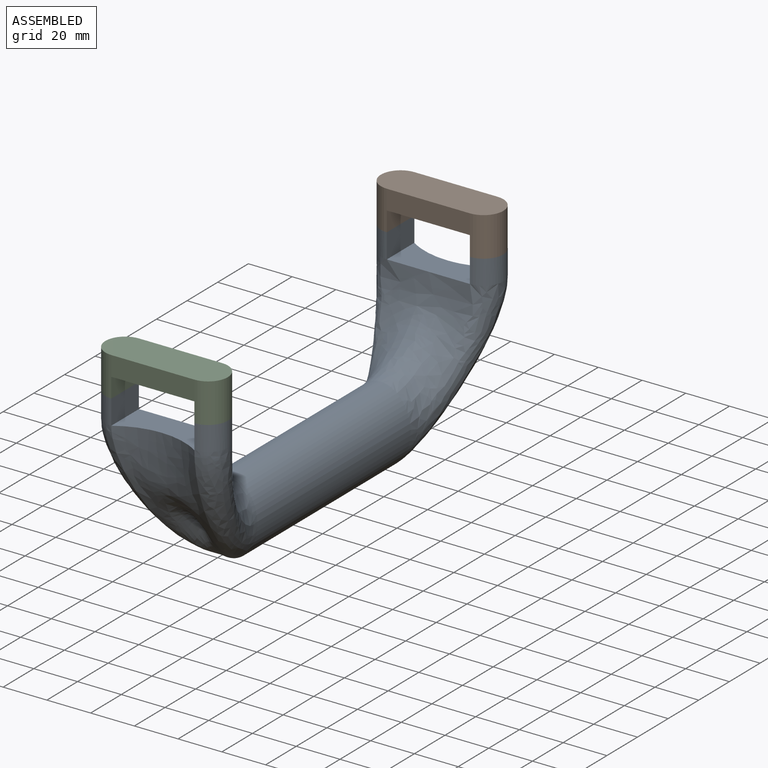
[diagram: assembled view]
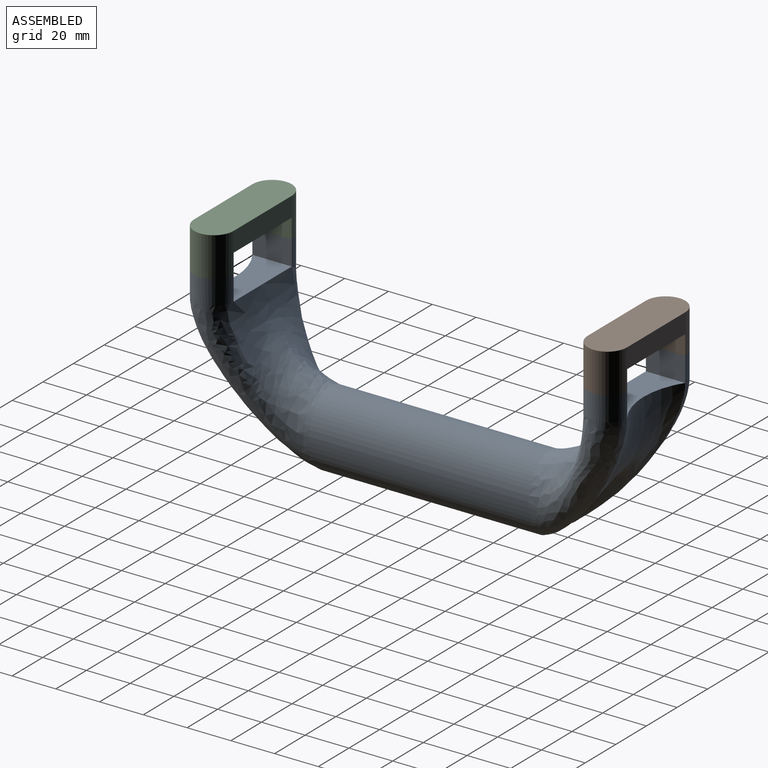
[diagram: assembled view, second angle]
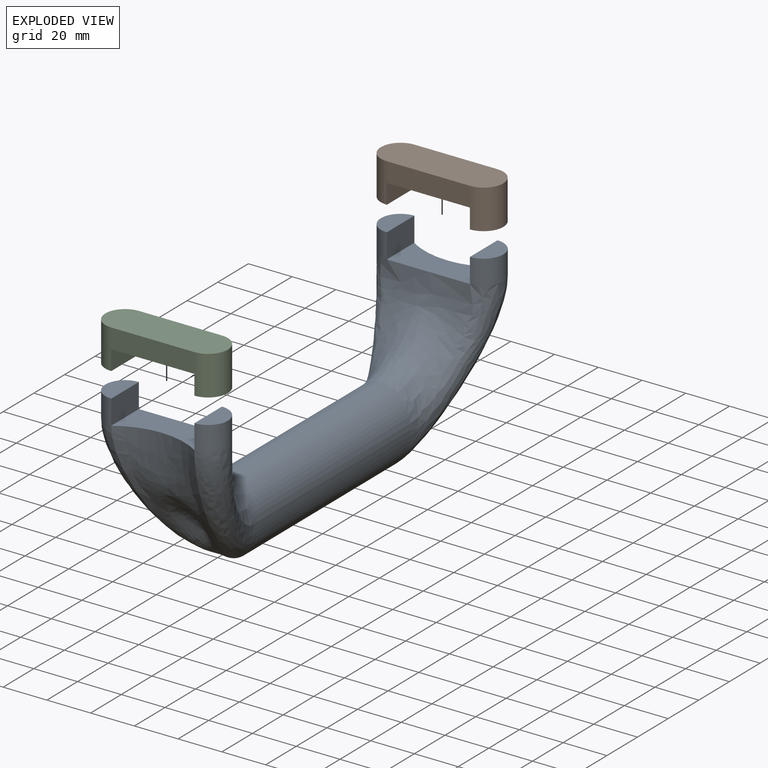
[diagram: exploded view]
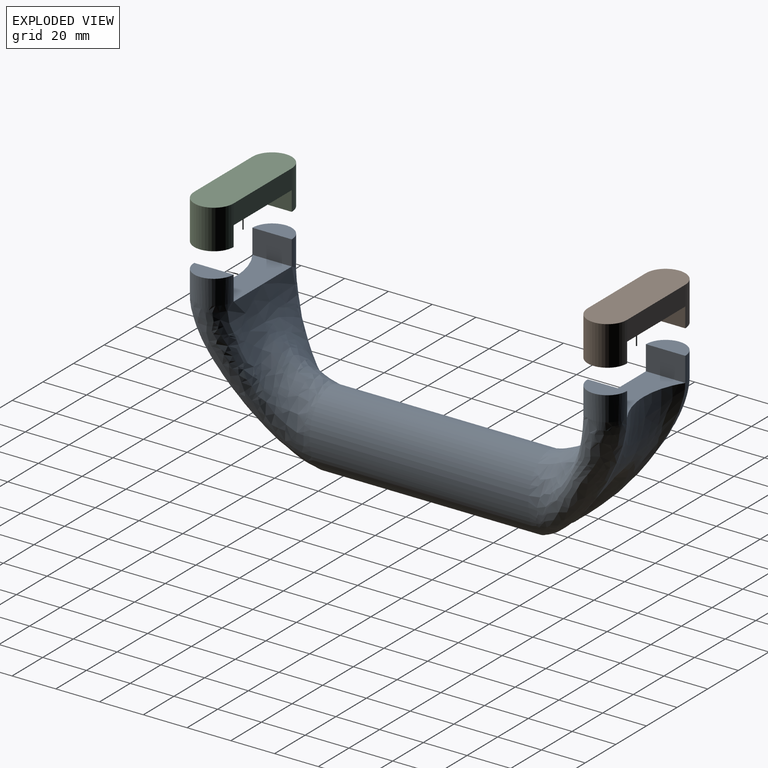
[diagram: exploded view, second angle]
ASSEMBLY  parts=3 mates=2
PART A: 20 faces, bbox 56.5x198.3x79.6 mm
  f0: extruded ~100x34.38mm, area 9690.2mm2, adj f1,f2,f12,f13
  f1: plane 17.7x4.34mm, normal (0,-1,0), area 0.5mm2, adj f0,f4
  f2: bspline ~64x55.97mm, area 5058.2mm2, adj f0,f3,f4,f6,f8
  f3: plane 38x18mm, normal (0,0,1), area 536.8mm2, adj f2,f4,f5,f9
  f4: bspline ~67.99x49mm, area 2467.4mm2, adj f1,f2,f3
  f5: plane 18x11.2mm, normal (1,0,0), area 201.6mm2, adj f3,f6,f7
  f6: cylinder r=9mm len=18mm, axis (0,0,1), area 316.7mm2, adj f2,f5,f7
  f7: plane 18x9mm, normal (0,0,1), area 127.2mm2, adj f5,f6
  f8: cylinder r=9mm len=18mm, axis (0,0,1), area 316.7mm2, adj f2,f9,f10
  f9: plane 18x11.2mm, normal (-1,0,0), area 201.6mm2, adj f3,f8,f10
  f10: plane 18x9mm, normal (0,0,1), area 127.2mm2, adj f8,f9
  f11: plane 38.43x18.43mm, normal (0,0,1), area 536.8mm2, adj f12,f13,f14,f18
  f12: bspline ~64x56.06mm, area 5065.8mm2, adj f0,f11,f13,f15,f17
  f13: bspline ~67.99x49mm, area 2471.1mm2, adj f0,f11,f12
  f14: plane 18x11.2mm, normal (-1,0,0), area 201.6mm2, adj f11,f15,f16
  f15: cylinder r=9mm len=18mm, axis (0,0,1), area 316.7mm2, adj f12,f14,f16
  f16: plane 18x9mm, normal (0,0,1), area 127.2mm2, adj f14,f15
  f17: cylinder r=9mm len=18mm, axis (0,0,1), area 316.7mm2, adj f12,f18,f19
  f18: plane 18x11.2mm, normal (1,0,0), area 201.6mm2, adj f11,f17,f19
  f19: plane 18x9mm, normal (0,0,1), area 127.2mm2, adj f17,f18
PART B: 10 faces, bbox 56x18x18 mm
  f0: plane 38x9mm, normal (0,-1,0), area 342mm2, adj f3,f4,f6,f9
  f1: plane 38x9mm, normal (0,1,0), area 342mm2, adj f3,f4,f6,f9
  f2: plane 18x9mm, normal (0,0,-1), area 127.2mm2, adj f3,f7
  f3: cylinder r=9mm len=18mm, axis (0,0,1), area 508.9mm2, adj f0,f1,f2,f6,f7
  f4: cylinder r=9mm len=18mm, axis (0,0,1), area 508.9mm2, adj f0,f1,f5,f6,f8
  f5: plane 18x9mm, normal (0,0,-1), area 127.2mm2, adj f4,f8
  f6: plane 56x18mm, normal (0,0,1), area 938.5mm2, adj f0,f1,f3,f4
  f7: plane 18x9mm, normal (1,0,0), area 162mm2, adj f2,f3,f9
  f8: plane 18x9mm, normal (-1,0,0), area 162mm2, adj f4,f5,f9
  f9: plane 38x18mm, normal (0,0,-1), area 684mm2, adj f0,f1,f7,f8
PART C: same geometry as B
PLACE A t=(-72.85,256.45,-25.3)mm
PLACE B t=(-72.85,256.45,-25.3)mm
PLACE C t=(-72.85,76.55,-25.3)mm
MATE fastened A.f16 <-> B.f5  axis (0,0,1) through (-50.04,256.45,-43.3)mm
MATE fastened C.f5 <-> A.f10  axis (0,0,-1) through (-50.04,76.55,-43.3)mm
